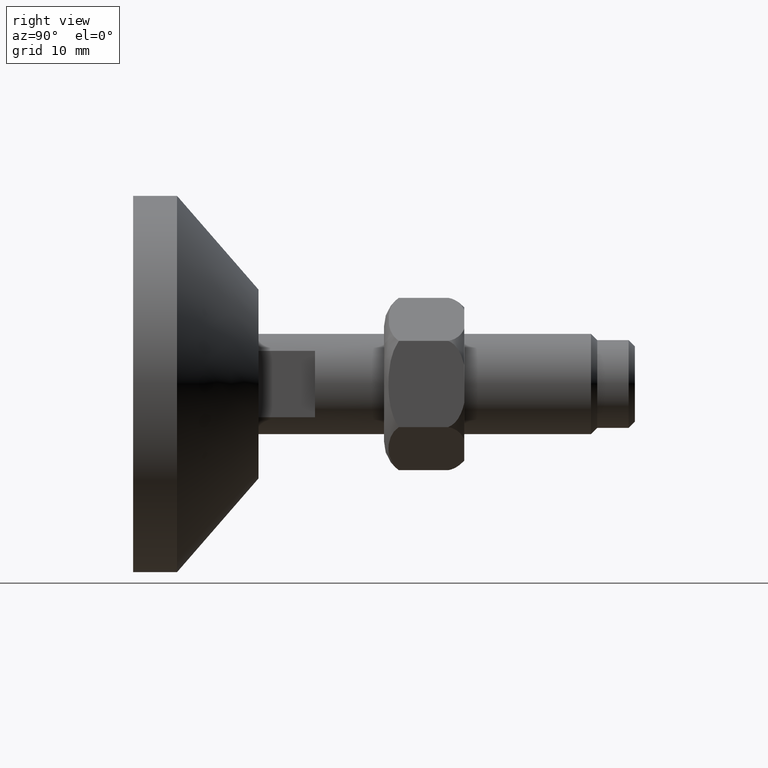
[diagram: clean part render]
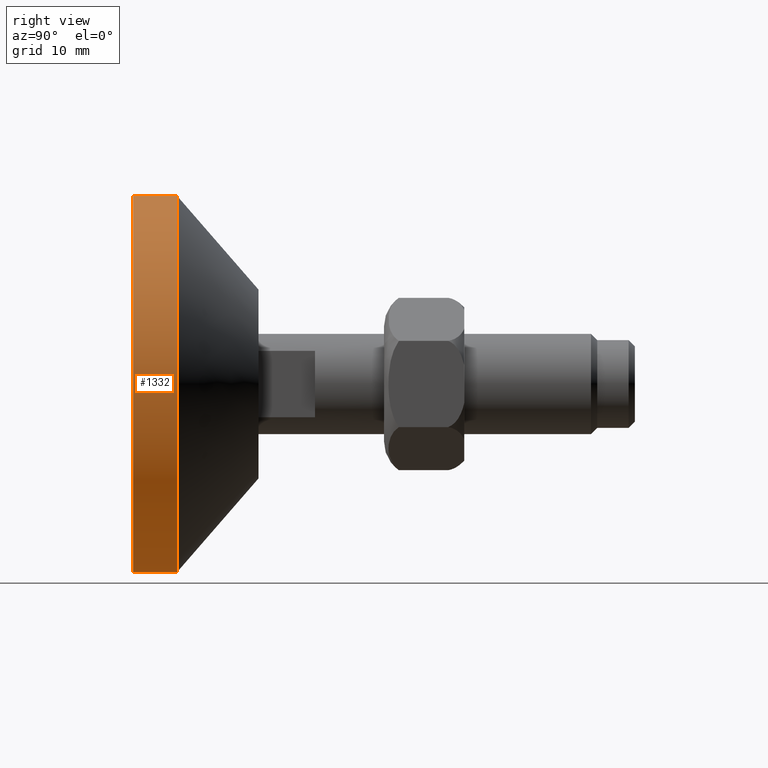
[diagram: same view with one face highlighted and labeled with its STEP entity id]
A machine part, right view. The second image highlights one B-rep face of the part: STEP entity #1332.
In plain terms, the highlighted cylindrical surface (partial cylindrical patch) has radius 30 mm, axis along (-0, -1, -0).
Its self-contained STEP definition (entity closure, byte-faithful):
#59 = ORIENTED_EDGE ( 'NONE', *, *, #1011, .T. ) ;
#60 = ORIENTED_EDGE ( 'NONE', *, *, #1026, .F. ) ;
#88 = ORIENTED_EDGE ( 'NONE', *, *, #1022, .T. ) ;
#97 = ORIENTED_EDGE ( 'NONE', *, *, #1466, .F. ) ;
#245 = CARTESIAN_POINT ( 'NONE',  ( 0.0000000000000000000, 7.000000000000000000, 0.0000000000000000000 ) ) ;
#246 = DIRECTION ( 'NONE',  ( -0.0000000000000000000, -1.000000000000000000, -0.0000000000000000000 ) ) ;
#247 = DIRECTION ( 'NONE',  ( 0.0000000000000000000, 0.0000000000000000000, -1.000000000000000000 ) ) ;
#560 = CIRCLE ( 'NONE', #821, 30.00000000000000000 ) ;
#572 = LINE ( 'NONE', #1422, #574 ) ;
#574 = VECTOR ( 'NONE', #1423, 1000.000000000000000 ) ;
#578 = LINE ( 'NONE', #922, #580 ) ;
#580 = VECTOR ( 'NONE', #923, 1000.000000000000000 ) ;
#594 = FACE_OUTER_BOUND ( 'NONE', #687, .T. ) ;
#595 = CYLINDRICAL_SURFACE ( 'NONE', #1476, 30.00000000000000000 ) ;
#630 = CIRCLE ( 'NONE', #1494, 30.00000000000000000 ) ;
#687 = EDGE_LOOP ( 'NONE', ( #97, #88, #59, #60 ) ) ;
#821 = AXIS2_PLACEMENT_3D ( 'NONE', #1396, #1397, #1398 ) ;
#922 = CARTESIAN_POINT ( 'NONE',  ( 0.0000000000000000000, 7.000000000000000000, -30.00000000000000000 ) ) ;
#923 = DIRECTION ( 'NONE',  ( -0.0000000000000000000, -1.000000000000000000, -0.0000000000000000000 ) ) ;
#974 = CARTESIAN_POINT ( 'NONE',  ( 0.0000000000000000000, 7.000000000000000000, -30.00000000000000000 ) ) ;
#984 = CARTESIAN_POINT ( 'NONE',  ( 3.673940397442059200E-015, 0.0000000000000000000, 30.00000000000000000 ) ) ;
#990 = CARTESIAN_POINT ( 'NONE',  ( 0.0000000000000000000, 0.0000000000000000000, -30.00000000000000000 ) ) ;
#992 = CARTESIAN_POINT ( 'NONE',  ( 3.673940397442059200E-015, 7.000000000000000000, 30.00000000000000000 ) ) ;
#1011 = EDGE_CURVE ( 'NONE', #1136, #1142, #560, .T. ) ;
#1022 = EDGE_CURVE ( 'NONE', #1144, #1136, #572, .T. ) ;
#1026 = EDGE_CURVE ( 'NONE', #1126, #1142, #578, .T. ) ;
#1075 = CARTESIAN_POINT ( 'NONE',  ( 0.0000000000000000000, 7.000000000000000000, 0.0000000000000000000 ) ) ;
#1076 = DIRECTION ( 'NONE',  ( 0.0000000000000000000, 1.000000000000000000, 0.0000000000000000000 ) ) ;
#1077 = DIRECTION ( 'NONE',  ( 0.0000000000000000000, 0.0000000000000000000, 1.000000000000000000 ) ) ;
#1126 = VERTEX_POINT ( 'NONE', #974 ) ;
#1136 = VERTEX_POINT ( 'NONE', #984 ) ;
#1142 = VERTEX_POINT ( 'NONE', #990 ) ;
#1144 = VERTEX_POINT ( 'NONE', #992 ) ;
#1332 = ADVANCED_FACE ( 'NONE', ( #594 ), #595, .T. ) ;
#1396 = CARTESIAN_POINT ( 'NONE',  ( 0.0000000000000000000, 0.0000000000000000000, 0.0000000000000000000 ) ) ;
#1397 = DIRECTION ( 'NONE',  ( 0.0000000000000000000, 1.000000000000000000, 0.0000000000000000000 ) ) ;
#1398 = DIRECTION ( 'NONE',  ( 0.0000000000000000000, 0.0000000000000000000, 1.000000000000000000 ) ) ;
#1422 = CARTESIAN_POINT ( 'NONE',  ( 3.673940397442059200E-015, 7.000000000000000000, 30.00000000000000000 ) ) ;
#1423 = DIRECTION ( 'NONE',  ( -0.0000000000000000000, -1.000000000000000000, -0.0000000000000000000 ) ) ;
#1466 = EDGE_CURVE ( 'NONE', #1144, #1126, #630, .T. ) ;
#1476 = AXIS2_PLACEMENT_3D ( 'NONE', #245, #246, #247 ) ;
#1494 = AXIS2_PLACEMENT_3D ( 'NONE', #1075, #1076, #1077 ) ;